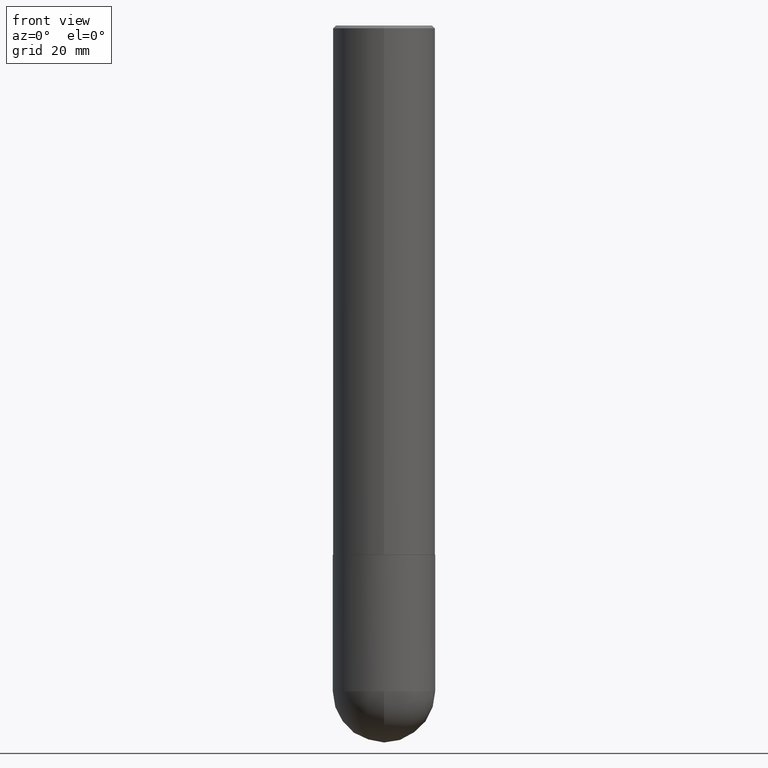
[diagram: clean part render]
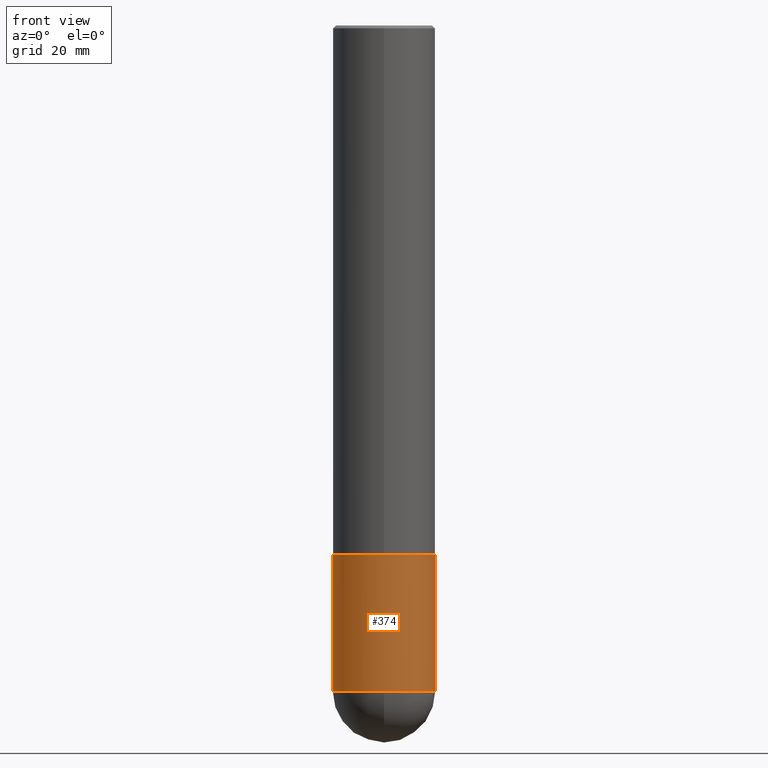
[diagram: same view with one face highlighted and labeled with its STEP entity id]
A machine part, front view. The second image highlights one B-rep face of the part: STEP entity #374.
In plain terms, the highlighted cylindrical surface (partial cylindrical patch) has radius 9.525 mm, axis along (-0, 0, 1).
Its self-contained STEP definition (entity closure, byte-faithful):
#2 = EDGE_CURVE ( 'NONE', #81, #117, #255, .T. ) ;
#12 = CARTESIAN_POINT ( 'NONE',  ( 1.192166043015254091E-28, -1.702097152686033664E-14, -4.875000000000000000 ) ) ;
#22 = CIRCLE ( 'NONE', #207, 0.3750000000000000555 ) ;
#36 = CARTESIAN_POINT ( 'NONE',  ( 0.3750000000000001110, -2.618611004132350411E-15, 1.828566290923476483E-29 ) ) ;
#38 = DIRECTION ( 'NONE',  ( -2.445468806185136597E-29, 3.491481338843145583E-15, 1.000000000000000000 ) ) ;
#40 = DIRECTION ( 'NONE',  ( -2.445468806185136597E-29, 3.491481338843145583E-15, 1.000000000000000000 ) ) ;
#52 = EDGE_CURVE ( 'NONE', #100, #117, #22, .T. ) ;
#56 = ORIENTED_EDGE ( 'NONE', *, *, #2, .T. ) ;
#57 = AXIS2_PLACEMENT_3D ( 'NONE', #157, #185, #323 ) ;
#69 = CARTESIAN_POINT ( 'NONE',  ( 9.476191623967404313E-29, -1.352949018801718908E-14, -3.875000000000000000 ) ) ;
#76 = LINE ( 'NONE', #403, #155 ) ;
#81 = VERTEX_POINT ( 'NONE', #189 ) ;
#100 = VERTEX_POINT ( 'NONE', #223 ) ;
#114 = ORIENTED_EDGE ( 'NONE', *, *, #52, .F. ) ;
#117 = VERTEX_POINT ( 'NONE', #361 ) ;
#119 = CYLINDRICAL_SURFACE ( 'NONE', #57, 0.3750000000000001110 ) ;
#137 = DIRECTION ( 'NONE',  ( -2.445468806185136597E-29, 3.491481338843145583E-15, 1.000000000000000000 ) ) ;
#140 = VECTOR ( 'NONE', #385, 39.37007874015748143 ) ;
#141 = DIRECTION ( 'NONE',  ( 1.000000000000000000, -6.982962677686260400E-15, 0.000000000000000000 ) ) ;
#155 = VECTOR ( 'NONE', #169, 39.37007874015748143 ) ;
#157 = CARTESIAN_POINT ( 'NONE',  ( 0.000000000000000000, 0.000000000000000000, 0.000000000000000000 ) ) ;
#167 = CIRCLE ( 'NONE', #406, 0.3750000000000001110 ) ;
#169 = DIRECTION ( 'NONE',  ( -2.445468806185136877E-29, 3.491481338843145188E-15, 1.000000000000000000 ) ) ;
#179 = EDGE_CURVE ( 'NONE', #405, #81, #351, .T. ) ;
#185 = DIRECTION ( 'NONE',  ( -2.445468806185136597E-29, 3.491481338843145583E-15, 1.000000000000000000 ) ) ;
#189 = CARTESIAN_POINT ( 'NONE',  ( 0.3750000000000001110, -1.789384186157111051E-14, -4.875000000000000000 ) ) ;
#198 = CARTESIAN_POINT ( 'NONE',  ( -0.3750000000000001110, -1.261069559833838637E-14, -4.875000000000000000 ) ) ;
#207 = AXIS2_PLACEMENT_3D ( 'NONE', #69, #38, #226 ) ;
#213 = AXIS2_PLACEMENT_3D ( 'NONE', #343, #40, #347 ) ;
#223 = CARTESIAN_POINT ( 'NONE',  ( -0.3750000000000000555, -1.261069559833838480E-14, -3.875000000000000000 ) ) ;
#226 = DIRECTION ( 'NONE',  ( 1.000000000000000000, -6.982962677686266711E-15, 0.000000000000000000 ) ) ;
#227 = CARTESIAN_POINT ( 'NONE',  ( -2.664535259100258157E-15, -0.3750000000000173195, -4.874999999999999112 ) ) ;
#230 = EDGE_CURVE ( 'NONE', #300, #405, #167, .T. ) ;
#232 = ORIENTED_EDGE ( 'NONE', *, *, #179, .T. ) ;
#249 = ORIENTED_EDGE ( 'NONE', *, *, #230, .T. ) ;
#255 = LINE ( 'NONE', #36, #140 ) ;
#271 = FACE_OUTER_BOUND ( 'NONE', #353, .T. ) ;
#300 = VERTEX_POINT ( 'NONE', #198 ) ;
#323 = DIRECTION ( 'NONE',  ( 1.000000000000000000, -6.982962677686265922E-15, 4.876176775795935793E-29 ) ) ;
#326 = EDGE_CURVE ( 'NONE', #300, #100, #76, .T. ) ;
#343 = CARTESIAN_POINT ( 'NONE',  ( 1.192166043015254091E-28, -1.702097152686033664E-14, -4.875000000000000000 ) ) ;
#347 = DIRECTION ( 'NONE',  ( 1.000000000000000000, -6.982962677686260400E-15, 0.000000000000000000 ) ) ;
#351 = CIRCLE ( 'NONE', #213, 0.3750000000000001110 ) ;
#353 = EDGE_LOOP ( 'NONE', ( #390, #249, #232, #56, #114 ) ) ;
#361 = CARTESIAN_POINT ( 'NONE',  ( 0.3750000000000000555, -1.614810119214954068E-14, -3.875000000000000000 ) ) ;
#374 = ADVANCED_FACE ( 'NONE', ( #271 ), #119, .T. ) ;
#385 = DIRECTION ( 'NONE',  ( -2.445468806185136877E-29, 3.491481338843145188E-15, 1.000000000000000000 ) ) ;
#390 = ORIENTED_EDGE ( 'NONE', *, *, #326, .F. ) ;
#403 = CARTESIAN_POINT ( 'NONE',  ( -0.3750000000000001110, 2.664535259100376486E-15, -1.844600658845590159E-29 ) ) ;
#405 = VERTEX_POINT ( 'NONE', #227 ) ;
#406 = AXIS2_PLACEMENT_3D ( 'NONE', #12, #137, #141 ) ;